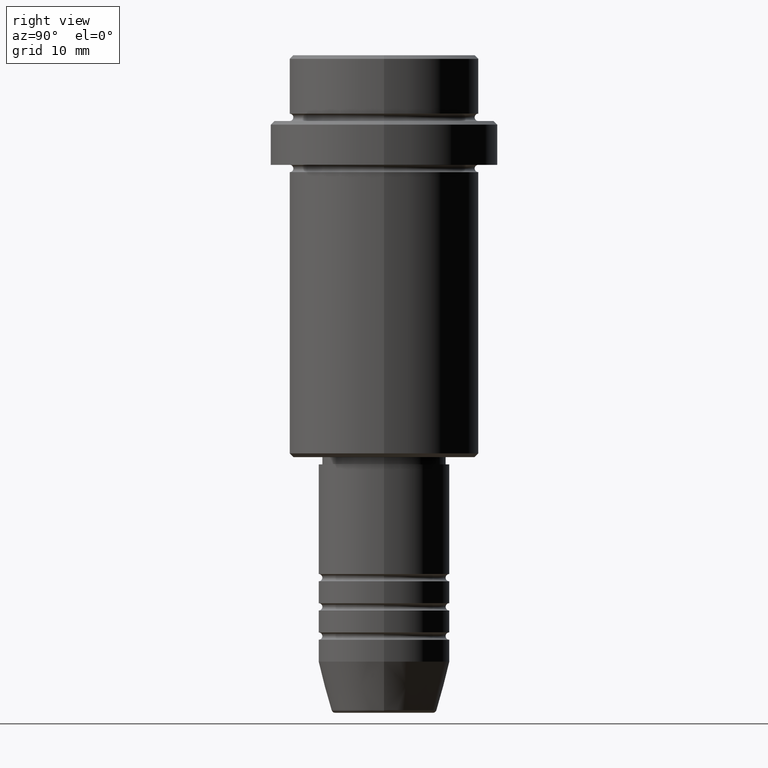
[diagram: clean part render]
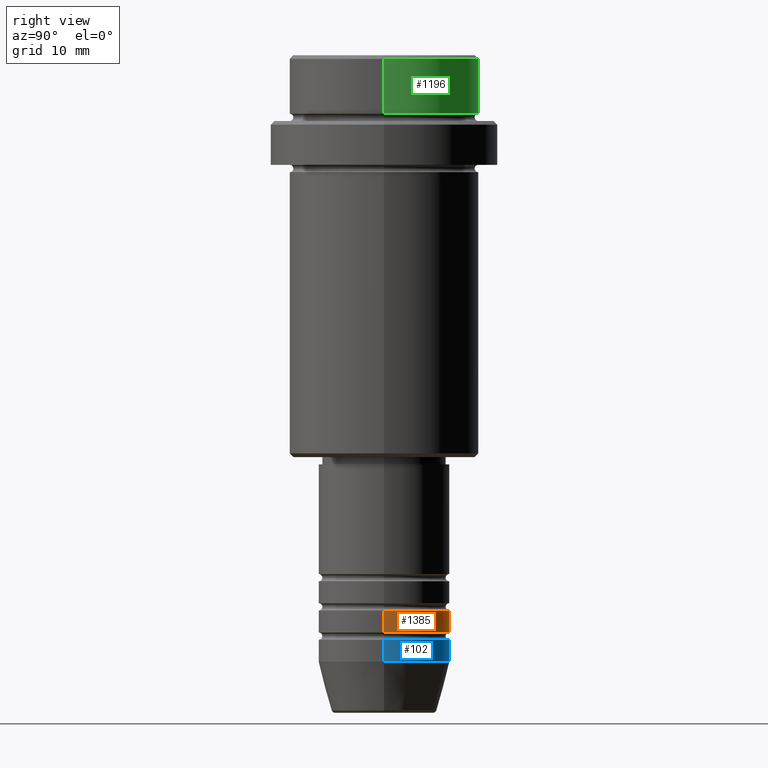
[diagram: same view with three faces highlighted in distinct colors, each labeled with its STEP entity id]
A machine part, right view with three faces highlighted in distinct colors.
Their STEP definitions:

[orange] entity #1385 — the highlighted cylindrical surface (partial cylindrical patch) has radius 9 mm, axis along (-0, -0, 1).
#53 = EDGE_CURVE ( 'NONE', #150, #1186, #216, .T. ) ;
#97 = CIRCLE ( 'NONE', #1236, 9.000000000000000000 ) ;
#150 = VERTEX_POINT ( 'NONE', #670 ) ;
#171 = CYLINDRICAL_SURFACE ( 'NONE', #373, 9.000000000000000000 ) ;
#192 = CARTESIAN_POINT ( 'NONE',  ( 0.000000000000000000, 0.000000000000000000, -78.99999999999990052 ) ) ;
#216 = LINE ( 'NONE', #1173, #298 ) ;
#264 = VERTEX_POINT ( 'NONE', #540 ) ;
#298 = VECTOR ( 'NONE', #1380, 1000.000000000000000 ) ;
#373 = AXIS2_PLACEMENT_3D ( 'NONE', #1151, #1364, #737 ) ;
#375 = EDGE_LOOP ( 'NONE', ( #483, #1286, #794, #681 ) ) ;
#408 = LINE ( 'NONE', #819, #416 ) ;
#412 = AXIS2_PLACEMENT_3D ( 'NONE', #192, #491, #828 ) ;
#416 = VECTOR ( 'NONE', #504, 1000.000000000000000 ) ;
#440 = EDGE_CURVE ( 'NONE', #150, #264, #1255, .T. ) ;
#483 = ORIENTED_EDGE ( 'NONE', *, *, #440, .T. ) ;
#491 = DIRECTION ( 'NONE',  ( -0.000000000000000000, -0.000000000000000000, 1.000000000000000000 ) ) ;
#494 = CARTESIAN_POINT ( 'NONE',  ( 0.000000000000000000, 0.000000000000000000, -75.99999999999990052 ) ) ;
#504 = DIRECTION ( 'NONE',  ( -0.000000000000000000, -0.000000000000000000, 1.000000000000000000 ) ) ;
#540 = CARTESIAN_POINT ( 'NONE',  ( -9.000000000000000000, 1.102182119232617714E-15, -78.99999999999990052 ) ) ;
#670 = CARTESIAN_POINT ( 'NONE',  ( 9.000000000000000000, 0.000000000000000000, -78.99999999999990052 ) ) ;
#681 = ORIENTED_EDGE ( 'NONE', *, *, #53, .F. ) ;
#737 = DIRECTION ( 'NONE',  ( 1.000000000000000000, 0.000000000000000000, 0.000000000000000000 ) ) ;
#791 = CARTESIAN_POINT ( 'NONE',  ( 9.000000000000000000, 0.000000000000000000, -75.99999999999990052 ) ) ;
#794 = ORIENTED_EDGE ( 'NONE', *, *, #1412, .F. ) ;
#819 = CARTESIAN_POINT ( 'NONE',  ( -9.000000000000000000, 1.102182119232617714E-15, 0.000000000000000000 ) ) ;
#828 = DIRECTION ( 'NONE',  ( 1.000000000000000000, 0.000000000000000000, 0.000000000000000000 ) ) ;
#849 = CARTESIAN_POINT ( 'NONE',  ( -9.000000000000000000, 1.102182119232617714E-15, -75.99999999999990052 ) ) ;
#937 = DIRECTION ( 'NONE',  ( -0.000000000000000000, -0.000000000000000000, 1.000000000000000000 ) ) ;
#1057 = FACE_OUTER_BOUND ( 'NONE', #375, .T. ) ;
#1142 = VERTEX_POINT ( 'NONE', #849 ) ;
#1151 = CARTESIAN_POINT ( 'NONE',  ( 0.000000000000000000, 0.000000000000000000, 0.000000000000000000 ) ) ;
#1173 = CARTESIAN_POINT ( 'NONE',  ( 9.000000000000000000, 0.000000000000000000, 0.000000000000000000 ) ) ;
#1186 = VERTEX_POINT ( 'NONE', #791 ) ;
#1236 = AXIS2_PLACEMENT_3D ( 'NONE', #494, #937, #1373 ) ;
#1255 = CIRCLE ( 'NONE', #412, 9.000000000000000000 ) ;
#1286 = ORIENTED_EDGE ( 'NONE', *, *, #1396, .T. ) ;
#1364 = DIRECTION ( 'NONE',  ( -0.000000000000000000, -0.000000000000000000, 1.000000000000000000 ) ) ;
#1373 = DIRECTION ( 'NONE',  ( 1.000000000000000000, 0.000000000000000000, 0.000000000000000000 ) ) ;
#1380 = DIRECTION ( 'NONE',  ( -0.000000000000000000, -0.000000000000000000, 1.000000000000000000 ) ) ;
#1385 = ADVANCED_FACE ( 'NONE', ( #1057 ), #171, .T. ) ;
#1396 = EDGE_CURVE ( 'NONE', #264, #1142, #408, .T. ) ;
#1412 = EDGE_CURVE ( 'NONE', #1186, #1142, #97, .T. ) ;

[blue] entity #102 — the highlighted cylindrical surface (partial cylindrical patch) has radius 9 mm, axis along (-0, -0, 1).
#20 = DIRECTION ( 'NONE',  ( 1.000000000000000000, 0.000000000000000000, 0.000000000000000000 ) ) ;
#32 = VERTEX_POINT ( 'NONE', #199 ) ;
#95 = EDGE_CURVE ( 'NONE', #218, #32, #207, .T. ) ;
#102 = ADVANCED_FACE ( 'NONE', ( #512 ), #420, .T. ) ;
#199 = CARTESIAN_POINT ( 'NONE',  ( 9.000000000000000000, 0.000000000000000000, -80.00000000000000000 ) ) ;
#207 = LINE ( 'NONE', #954, #495 ) ;
#218 = VERTEX_POINT ( 'NONE', #226 ) ;
#226 = CARTESIAN_POINT ( 'NONE',  ( 9.000000000000000000, 0.000000000000000000, -83.00000000000000000 ) ) ;
#257 = CIRCLE ( 'NONE', #369, 9.000000000000000000 ) ;
#369 = AXIS2_PLACEMENT_3D ( 'NONE', #1039, #1232, #20 ) ;
#397 = CARTESIAN_POINT ( 'NONE',  ( 0.000000000000000000, 0.000000000000000000, -80.00000000000000000 ) ) ;
#420 = CYLINDRICAL_SURFACE ( 'NONE', #1347, 9.000000000000000000 ) ;
#428 = EDGE_CURVE ( 'NONE', #32, #437, #496, .T. ) ;
#437 = VERTEX_POINT ( 'NONE', #822 ) ;
#453 = EDGE_CURVE ( 'NONE', #1409, #437, #511, .T. ) ;
#495 = VECTOR ( 'NONE', #724, 1000.000000000000000 ) ;
#496 = CIRCLE ( 'NONE', #1076, 9.000000000000000000 ) ;
#509 = ORIENTED_EDGE ( 'NONE', *, *, #453, .T. ) ;
#511 = LINE ( 'NONE', #1376, #1349 ) ;
#512 = FACE_OUTER_BOUND ( 'NONE', #1272, .T. ) ;
#555 = ORIENTED_EDGE ( 'NONE', *, *, #795, .T. ) ;
#615 = CARTESIAN_POINT ( 'NONE',  ( -9.000000000000000000, 1.102182119232617714E-15, -83.00000000000000000 ) ) ;
#723 = DIRECTION ( 'NONE',  ( -0.000000000000000000, -0.000000000000000000, 1.000000000000000000 ) ) ;
#724 = DIRECTION ( 'NONE',  ( -0.000000000000000000, -0.000000000000000000, 1.000000000000000000 ) ) ;
#733 = DIRECTION ( 'NONE',  ( -0.000000000000000000, -0.000000000000000000, 1.000000000000000000 ) ) ;
#795 = EDGE_CURVE ( 'NONE', #218, #1409, #257, .T. ) ;
#822 = CARTESIAN_POINT ( 'NONE',  ( -9.000000000000000000, 1.102182119232617714E-15, -80.00000000000000000 ) ) ;
#844 = DIRECTION ( 'NONE',  ( 1.000000000000000000, 0.000000000000000000, 0.000000000000000000 ) ) ;
#852 = DIRECTION ( 'NONE',  ( -0.000000000000000000, -0.000000000000000000, 1.000000000000000000 ) ) ;
#954 = CARTESIAN_POINT ( 'NONE',  ( 9.000000000000000000, 0.000000000000000000, 0.000000000000000000 ) ) ;
#992 = DIRECTION ( 'NONE',  ( 1.000000000000000000, 0.000000000000000000, 0.000000000000000000 ) ) ;
#1039 = CARTESIAN_POINT ( 'NONE',  ( 0.000000000000000000, 0.000000000000000000, -83.00000000000000000 ) ) ;
#1076 = AXIS2_PLACEMENT_3D ( 'NONE', #397, #733, #844 ) ;
#1087 = CARTESIAN_POINT ( 'NONE',  ( 0.000000000000000000, 0.000000000000000000, 0.000000000000000000 ) ) ;
#1232 = DIRECTION ( 'NONE',  ( -0.000000000000000000, -0.000000000000000000, 1.000000000000000000 ) ) ;
#1272 = EDGE_LOOP ( 'NONE', ( #555, #509, #1363, #1398 ) ) ;
#1347 = AXIS2_PLACEMENT_3D ( 'NONE', #1087, #852, #992 ) ;
#1349 = VECTOR ( 'NONE', #723, 1000.000000000000000 ) ;
#1363 = ORIENTED_EDGE ( 'NONE', *, *, #428, .F. ) ;
#1376 = CARTESIAN_POINT ( 'NONE',  ( -9.000000000000000000, 1.102182119232617714E-15, 0.000000000000000000 ) ) ;
#1398 = ORIENTED_EDGE ( 'NONE', *, *, #95, .F. ) ;
#1409 = VERTEX_POINT ( 'NONE', #615 ) ;

[green] entity #1196 — the highlighted cylindrical surface (partial cylindrical patch) has radius 13 mm, axis along (-0, -0, 1).
#59 = DIRECTION ( 'NONE',  ( 1.000000000000000000, 0.000000000000000000, 0.000000000000000000 ) ) ;
#72 = LINE ( 'NONE', #1261, #438 ) ;
#87 = EDGE_CURVE ( 'NONE', #628, #435, #684, .T. ) ;
#160 = CIRCLE ( 'NONE', #606, 12.99999999999999822 ) ;
#190 = CARTESIAN_POINT ( 'NONE',  ( 12.99999999999999822, 0.000000000000000000, 0.000000000000000000 ) ) ;
#239 = VERTEX_POINT ( 'NONE', #548 ) ;
#241 = CARTESIAN_POINT ( 'NONE',  ( 0.000000000000000000, 0.000000000000000000, 0.000000000000000000 ) ) ;
#343 = CARTESIAN_POINT ( 'NONE',  ( 12.99999999999999822, 0.000000000000000000, -0.4999999999999899525 ) ) ;
#353 = CYLINDRICAL_SURFACE ( 'NONE', #1058, 12.99999999999999822 ) ;
#364 = VERTEX_POINT ( 'NONE', #343 ) ;
#435 = VERTEX_POINT ( 'NONE', #1161 ) ;
#438 = VECTOR ( 'NONE', #1282, 1000.000000000000000 ) ;
#448 = EDGE_CURVE ( 'NONE', #239, #364, #160, .T. ) ;
#473 = DIRECTION ( 'NONE',  ( 1.000000000000000000, 0.000000000000000000, 0.000000000000000000 ) ) ;
#508 = DIRECTION ( 'NONE',  ( -0.000000000000000000, -0.000000000000000000, 1.000000000000000000 ) ) ;
#548 = CARTESIAN_POINT ( 'NONE',  ( -12.99999999999999822, 1.592040838891558898E-15, -0.4999999999999899525 ) ) ;
#585 = DIRECTION ( 'NONE',  ( -0.000000000000000000, -0.000000000000000000, 1.000000000000000000 ) ) ;
#606 = AXIS2_PLACEMENT_3D ( 'NONE', #617, #835, #59 ) ;
#617 = CARTESIAN_POINT ( 'NONE',  ( 0.000000000000000000, 0.000000000000000000, -0.4999999999999899525 ) ) ;
#628 = VERTEX_POINT ( 'NONE', #884 ) ;
#684 = CIRCLE ( 'NONE', #957, 12.99999999999999822 ) ;
#738 = LINE ( 'NONE', #190, #843 ) ;
#744 = CARTESIAN_POINT ( 'NONE',  ( 0.000000000000000000, 0.000000000000000000, -7.999999999999998224 ) ) ;
#830 = ORIENTED_EDGE ( 'NONE', *, *, #1333, .T. ) ;
#835 = DIRECTION ( 'NONE',  ( 0.000000000000000000, 0.000000000000000000, -1.000000000000000000 ) ) ;
#843 = VECTOR ( 'NONE', #952, 1000.000000000000000 ) ;
#866 = ORIENTED_EDGE ( 'NONE', *, *, #1012, .F. ) ;
#884 = CARTESIAN_POINT ( 'NONE',  ( 12.99999999999999822, 0.000000000000000000, -7.999999999999998224 ) ) ;
#948 = DIRECTION ( 'NONE',  ( 1.000000000000000000, 0.000000000000000000, 0.000000000000000000 ) ) ;
#952 = DIRECTION ( 'NONE',  ( -0.000000000000000000, -0.000000000000000000, 1.000000000000000000 ) ) ;
#957 = AXIS2_PLACEMENT_3D ( 'NONE', #744, #508, #948 ) ;
#1012 = EDGE_CURVE ( 'NONE', #628, #364, #738, .T. ) ;
#1058 = AXIS2_PLACEMENT_3D ( 'NONE', #241, #585, #473 ) ;
#1161 = CARTESIAN_POINT ( 'NONE',  ( -12.99999999999999822, 1.592040838891558898E-15, -7.999999999999998224 ) ) ;
#1196 = ADVANCED_FACE ( 'NONE', ( #1323 ), #353, .T. ) ;
#1237 = ORIENTED_EDGE ( 'NONE', *, *, #87, .T. ) ;
#1261 = CARTESIAN_POINT ( 'NONE',  ( -12.99999999999999822, 1.592040838891558898E-15, 0.000000000000000000 ) ) ;
#1282 = DIRECTION ( 'NONE',  ( -0.000000000000000000, -0.000000000000000000, 1.000000000000000000 ) ) ;
#1323 = FACE_OUTER_BOUND ( 'NONE', #1356, .T. ) ;
#1333 = EDGE_CURVE ( 'NONE', #435, #239, #72, .T. ) ;
#1356 = EDGE_LOOP ( 'NONE', ( #1237, #830, #1408, #866 ) ) ;
#1408 = ORIENTED_EDGE ( 'NONE', *, *, #448, .T. ) ;